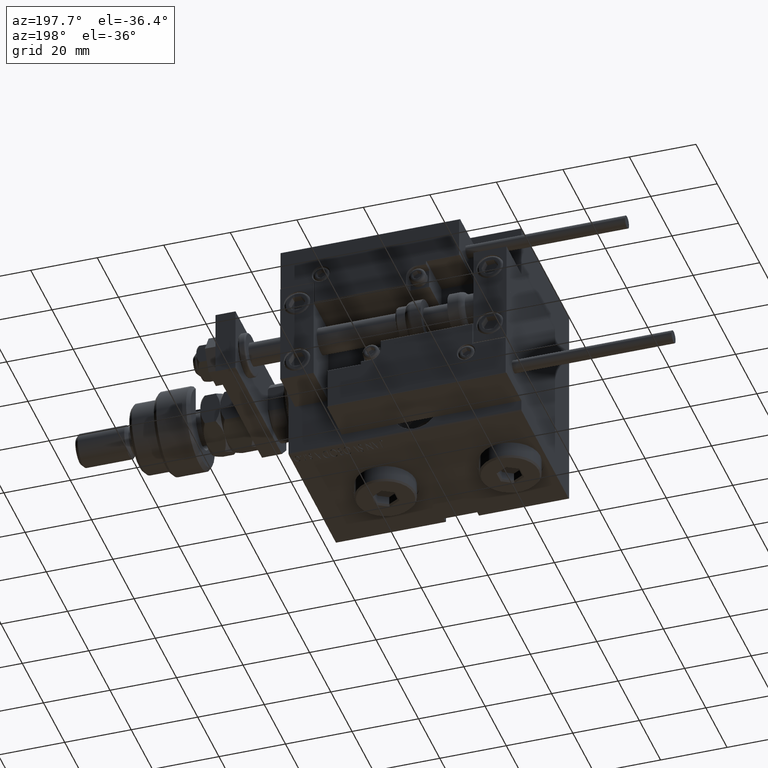
[diagram: clean part render]
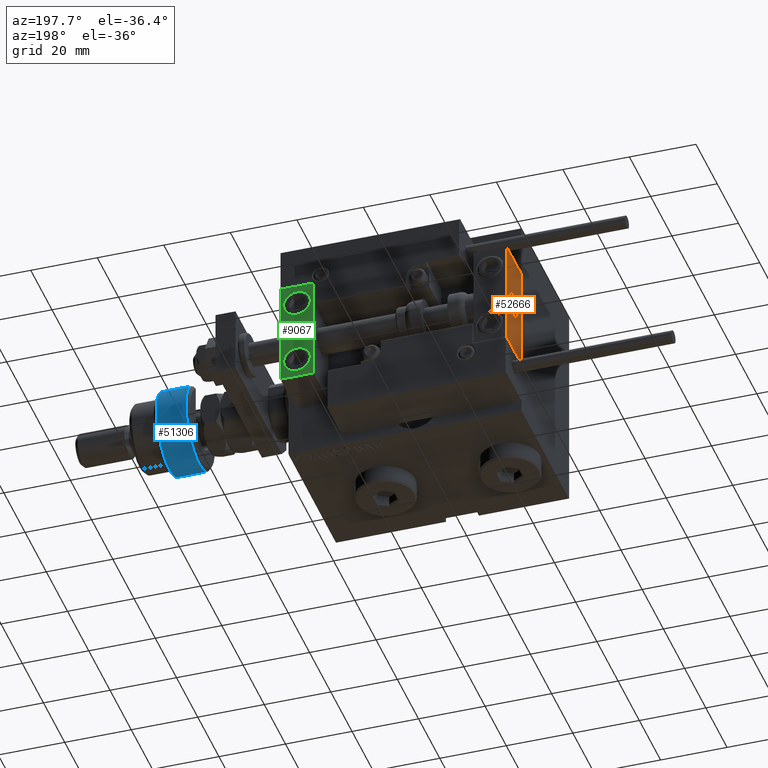
[diagram: same view with three faces highlighted in distinct colors, each labeled with its STEP entity id]
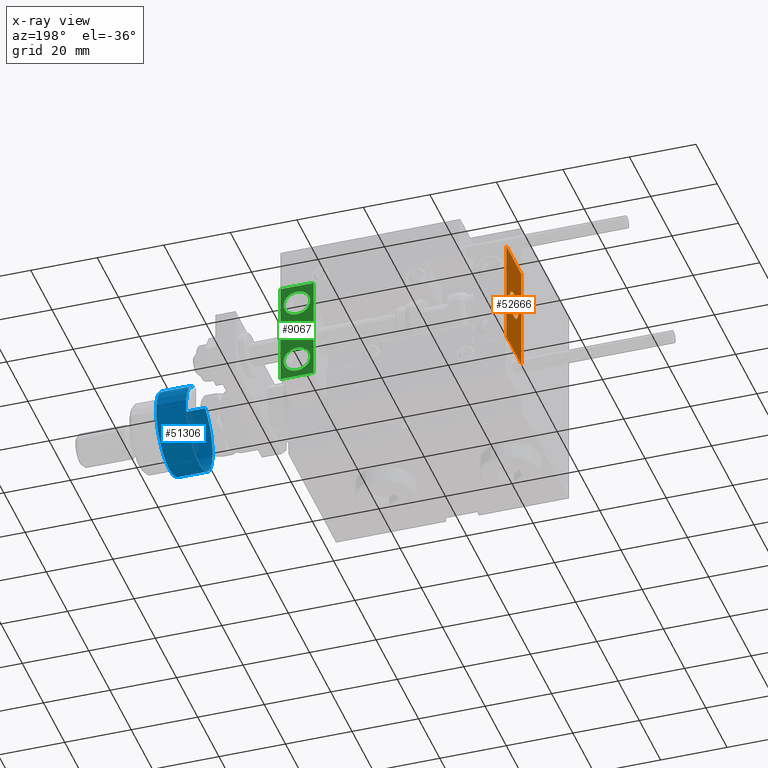
[diagram: x-ray of the same camera — body ghosted, the three highlighted faces saturated]
A machine part, auxiliary view with three faces highlighted in distinct colors.
The next image is the same camera in x-ray (body ghosted, the three faces saturated) — at least one of them is partly hidden behind the body in this view.
Their STEP definitions:

[orange] entity #52666 — the highlighted planar face has unit normal (1, 0, -0).
#428 = CARTESIAN_POINT ( 'NONE',  ( 10.00000000000000000, -7.000000000000000000, -16.00000000000000711 ) ) ;
#3017 = ORIENTED_EDGE ( 'NONE', *, *, #15675, .T. ) ;
#3043 = DIRECTION ( 'NONE',  ( 0.000000000000000000, -1.000000000000000000, 0.000000000000000000 ) ) ;
#3625 = EDGE_LOOP ( 'NONE', ( #53535, #32004 ) ) ;
#5743 = CARTESIAN_POINT ( 'NONE',  ( 10.00000000000000000, 4.898587196589412829E-16, -4.000000000000000000 ) ) ;
#6129 = AXIS2_PLACEMENT_3D ( 'NONE', #38323, #33957, #16782 ) ;
#6424 = AXIS2_PLACEMENT_3D ( 'NONE', #9225, #29414, #16880 ) ;
#6944 = VECTOR ( 'NONE', #47140, 1000.000000000000000 ) ;
#7718 = ORIENTED_EDGE ( 'NONE', *, *, #34459, .F. ) ;
#8499 = EDGE_CURVE ( 'NONE', #32985, #24153, #39260, .T. ) ;
#8754 = VECTOR ( 'NONE', #19813, 1000.000000000000000 ) ;
#9225 = CARTESIAN_POINT ( 'NONE',  ( 10.00000000000000000, 0.000000000000000000, 0.000000000000000000 ) ) ;
#10223 = VECTOR ( 'NONE', #3043, 1000.000000000000000 ) ;
#10747 = CIRCLE ( 'NONE', #6424, 4.000000000000000000 ) ;
#11434 = CARTESIAN_POINT ( 'NONE',  ( 10.00000000000000000, 0.000000000000000000, 0.000000000000000000 ) ) ;
#14301 = AXIS2_PLACEMENT_3D ( 'NONE', #11434, #47990, #44435 ) ;
#14777 = LINE ( 'NONE', #18873, #10223 ) ;
#15675 = EDGE_CURVE ( 'NONE', #49169, #16735, #44359, .T. ) ;
#16735 = VERTEX_POINT ( 'NONE', #428 ) ;
#16782 = DIRECTION ( 'NONE',  ( 0.000000000000000000, 0.000000000000000000, 1.000000000000000000 ) ) ;
#16880 = DIRECTION ( 'NONE',  ( 0.000000000000000000, 0.000000000000000000, 1.000000000000000000 ) ) ;
#18873 = CARTESIAN_POINT ( 'NONE',  ( 10.00000000000000000, 7.000000000000000000, -16.00000000000000711 ) ) ;
#19617 = PLANE ( 'NONE',  #14301 ) ;
#19813 = DIRECTION ( 'NONE',  ( 0.000000000000000000, 0.000000000000000000, -1.000000000000000000 ) ) ;
#21337 = CARTESIAN_POINT ( 'NONE',  ( 10.00000000000000000, -7.000000000000000000, 15.99999999999999289 ) ) ;
#22045 = CARTESIAN_POINT ( 'NONE',  ( 10.00000000000000000, 7.000000000000000000, 15.99999999999999289 ) ) ;
#23450 = ORIENTED_EDGE ( 'NONE', *, *, #8499, .F. ) ;
#24153 = VERTEX_POINT ( 'NONE', #34059 ) ;
#24903 = EDGE_CURVE ( 'NONE', #39153, #30268, #10747, .T. ) ;
#26169 = CARTESIAN_POINT ( 'NONE',  ( 10.00000000000000000, 7.000000000000000000, 15.99999999999999289 ) ) ;
#27247 = CARTESIAN_POINT ( 'NONE',  ( 10.00000000000000000, 7.000000000000000000, 15.99999999999999289 ) ) ;
#27522 = FACE_BOUND ( 'NONE', #3625, .T. ) ;
#28693 = EDGE_LOOP ( 'NONE', ( #3017, #7718, #23450, #41413 ) ) ;
#29414 = DIRECTION ( 'NONE',  ( -1.000000000000000000, 0.000000000000000000, 0.000000000000000000 ) ) ;
#30268 = VERTEX_POINT ( 'NONE', #42832 ) ;
#32004 = ORIENTED_EDGE ( 'NONE', *, *, #24903, .T. ) ;
#32985 = VERTEX_POINT ( 'NONE', #26169 ) ;
#33957 = DIRECTION ( 'NONE',  ( -1.000000000000000000, 0.000000000000000000, 0.000000000000000000 ) ) ;
#34059 = CARTESIAN_POINT ( 'NONE',  ( 10.00000000000000000, 7.000000000000000000, -16.00000000000000711 ) ) ;
#34459 = EDGE_CURVE ( 'NONE', #24153, #16735, #14777, .T. ) ;
#37618 = LINE ( 'NONE', #22045, #6944 ) ;
#38323 = CARTESIAN_POINT ( 'NONE',  ( 10.00000000000000000, 0.000000000000000000, 0.000000000000000000 ) ) ;
#39153 = VERTEX_POINT ( 'NONE', #5743 ) ;
#39260 = LINE ( 'NONE', #27247, #43275 ) ;
#39508 = EDGE_CURVE ( 'NONE', #32985, #49169, #37618, .T. ) ;
#39737 = CARTESIAN_POINT ( 'NONE',  ( 10.00000000000000000, -7.000000000000000000, 15.99999999999999289 ) ) ;
#41413 = ORIENTED_EDGE ( 'NONE', *, *, #39508, .T. ) ;
#42832 = CARTESIAN_POINT ( 'NONE',  ( 10.00000000000000000, 0.000000000000000000, 4.000000000000000000 ) ) ;
#43275 = VECTOR ( 'NONE', #51801, 1000.000000000000000 ) ;
#43808 = EDGE_CURVE ( 'NONE', #30268, #39153, #47043, .T. ) ;
#44359 = LINE ( 'NONE', #39737, #8754 ) ;
#44435 = DIRECTION ( 'NONE',  ( -0.000000000000000000, 0.000000000000000000, 1.000000000000000000 ) ) ;
#47043 = CIRCLE ( 'NONE', #6129, 4.000000000000000000 ) ;
#47140 = DIRECTION ( 'NONE',  ( 0.000000000000000000, -1.000000000000000000, 0.000000000000000000 ) ) ;
#47990 = DIRECTION ( 'NONE',  ( -1.000000000000000000, 0.000000000000000000, -0.000000000000000000 ) ) ;
#49169 = VERTEX_POINT ( 'NONE', #21337 ) ;
#51801 = DIRECTION ( 'NONE',  ( 0.000000000000000000, 0.000000000000000000, -1.000000000000000000 ) ) ;
#52337 = FACE_OUTER_BOUND ( 'NONE', #28693, .T. ) ;
#52666 = ADVANCED_FACE ( 'NONE', ( #27522, #52337 ), #19617, .F. ) ;
#53535 = ORIENTED_EDGE ( 'NONE', *, *, #43808, .T. ) ;

[blue] entity #51306 — the highlighted cylindrical surface (partial cylindrical patch) has radius 12.5 mm, axis along (-1, -0, 0).
#1919 = CARTESIAN_POINT ( 'NONE',  ( 12.50000000000000000, 0.000000000000000000, 0.9999999999999956701 ) ) ;
#2293 = DIRECTION ( 'NONE',  ( 1.000000000000000000, 0.000000000000000000, 0.000000000000000000 ) ) ;
#2981 = CARTESIAN_POINT ( 'NONE',  ( -11.22497216032182443, 5.500000000000000000, 10.00000000000000000 ) ) ;
#3031 = CARTESIAN_POINT ( 'NONE',  ( -11.22497216032182443, 5.500000000000000000, 0.9999999999999956701 ) ) ;
#3901 = CARTESIAN_POINT ( 'NONE',  ( 0.000000000000000000, 0.000000000000000000, 11.00000000000000000 ) ) ;
#4152 = CYLINDRICAL_SURFACE ( 'NONE', #38602, 12.50000000000000000 ) ;
#4238 = CARTESIAN_POINT ( 'NONE',  ( -11.22497216032182088, -5.500000000000007105, 10.00000000000000000 ) ) ;
#4509 = VECTOR ( 'NONE', #48397, 1000.000000000000000 ) ;
#6105 = ORIENTED_EDGE ( 'NONE', *, *, #19497, .T. ) ;
#7395 = CIRCLE ( 'NONE', #40388, 12.50000000000000000 ) ;
#8330 = EDGE_LOOP ( 'NONE', ( #21658, #6105, #8448, #29622, #35338 ) ) ;
#8448 = ORIENTED_EDGE ( 'NONE', *, *, #21343, .T. ) ;
#9656 = CIRCLE ( 'NONE', #35796, 12.50000000000000000 ) ;
#11793 = EDGE_CURVE ( 'NONE', #17743, #52360, #50191, .T. ) ;
#12347 = DIRECTION ( 'NONE',  ( -1.000000000000000000, 0.000000000000000000, 0.000000000000000000 ) ) ;
#12614 = FACE_OUTER_BOUND ( 'NONE', #8330, .T. ) ;
#13101 = DIRECTION ( 'NONE',  ( -0.000000000000000000, -0.000000000000000000, -1.000000000000000000 ) ) ;
#13141 = DIRECTION ( 'NONE',  ( 0.000000000000000000, 0.000000000000000000, -1.000000000000000000 ) ) ;
#15112 = CARTESIAN_POINT ( 'NONE',  ( -11.22497216032182088, -5.500000000000007105, 12.50000000000000000 ) ) ;
#16976 = DIRECTION ( 'NONE',  ( -0.000000000000000000, -0.000000000000000000, -1.000000000000000000 ) ) ;
#17743 = VERTEX_POINT ( 'NONE', #2981 ) ;
#18162 = CIRCLE ( 'NONE', #31203, 12.50000000000000000 ) ;
#19497 = EDGE_CURVE ( 'NONE', #17743, #53383, #9656, .T. ) ;
#21343 = EDGE_CURVE ( 'NONE', #53383, #35880, #52468, .T. ) ;
#21587 = CARTESIAN_POINT ( 'NONE',  ( 0.000000000000000000, 0.000000000000000000, 10.00000000000000000 ) ) ;
#21658 = ORIENTED_EDGE ( 'NONE', *, *, #11793, .F. ) ;
#23851 = CARTESIAN_POINT ( 'NONE',  ( 0.000000000000000000, 0.000000000000000000, 0.9999999999999956701 ) ) ;
#28605 = EDGE_CURVE ( 'NONE', #39207, #52360, #7395, .T. ) ;
#29622 = ORIENTED_EDGE ( 'NONE', *, *, #36678, .T. ) ;
#31203 = AXIS2_PLACEMENT_3D ( 'NONE', #23851, #44045, #2293 ) ;
#31719 = CARTESIAN_POINT ( 'NONE',  ( 0.000000000000000000, 0.000000000000000000, 0.9999999999999956701 ) ) ;
#31983 = DIRECTION ( 'NONE',  ( 1.000000000000000000, 0.000000000000000000, 0.000000000000000000 ) ) ;
#32994 = VECTOR ( 'NONE', #13101, 1000.000000000000000 ) ;
#35338 = ORIENTED_EDGE ( 'NONE', *, *, #28605, .T. ) ;
#35796 = AXIS2_PLACEMENT_3D ( 'NONE', #21587, #13141, #38507 ) ;
#35880 = VERTEX_POINT ( 'NONE', #42341 ) ;
#36678 = EDGE_CURVE ( 'NONE', #35880, #39207, #18162, .T. ) ;
#38507 = DIRECTION ( 'NONE',  ( 1.000000000000000000, 0.000000000000000000, 0.000000000000000000 ) ) ;
#38602 = AXIS2_PLACEMENT_3D ( 'NONE', #3901, #16976, #12347 ) ;
#39207 = VERTEX_POINT ( 'NONE', #1919 ) ;
#40388 = AXIS2_PLACEMENT_3D ( 'NONE', #31719, #48365, #31983 ) ;
#42341 = CARTESIAN_POINT ( 'NONE',  ( -11.22497216032182088, -5.500000000000007105, 0.9999999999999956701 ) ) ;
#44045 = DIRECTION ( 'NONE',  ( -0.000000000000000000, -0.000000000000000000, 1.000000000000000000 ) ) ;
#48365 = DIRECTION ( 'NONE',  ( -0.000000000000000000, -0.000000000000000000, 1.000000000000000000 ) ) ;
#48397 = DIRECTION ( 'NONE',  ( -0.000000000000000000, -0.000000000000000000, -1.000000000000000000 ) ) ;
#50191 = LINE ( 'NONE', #50458, #32994 ) ;
#50458 = CARTESIAN_POINT ( 'NONE',  ( -11.22497216032182443, 5.500000000000000000, 12.50000000000000000 ) ) ;
#51306 = ADVANCED_FACE ( 'NONE', ( #12614 ), #4152, .T. ) ;
#52360 = VERTEX_POINT ( 'NONE', #3031 ) ;
#52468 = LINE ( 'NONE', #15112, #4509 ) ;
#53383 = VERTEX_POINT ( 'NONE', #4238 ) ;

[green] entity #9067 — the highlighted planar face has unit normal (0, 1, 0).
#548 = VECTOR ( 'NONE', #51575, 1000.000000000000000 ) ;
#904 = ORIENTED_EDGE ( 'NONE', *, *, #26802, .F. ) ;
#1834 = DIRECTION ( 'NONE',  ( 1.848892746611746419E-32, -1.000000000000000000, 6.616381192988677562E-17 ) ) ;
#2459 = EDGE_CURVE ( 'NONE', #24153, #6732, #24321, .T. ) ;
#3024 = CIRCLE ( 'NONE', #28309, 4.000000000000000888 ) ;
#3109 = DIRECTION ( 'NONE',  ( 0.000000000000000000, 0.000000000000000000, 1.000000000000000000 ) ) ;
#4085 = DIRECTION ( 'NONE',  ( 0.000000000000000000, 0.000000000000000000, 1.000000000000000000 ) ) ;
#4738 = AXIS2_PLACEMENT_3D ( 'NONE', #46075, #29177, #4085 ) ;
#5950 = DIRECTION ( 'NONE',  ( -1.000000000000000000, -0.000000000000000000, -0.000000000000000000 ) ) ;
#6003 = CIRCLE ( 'NONE', #10326, 4.000000000000000000 ) ;
#6732 = VERTEX_POINT ( 'NONE', #30232 ) ;
#8499 = EDGE_CURVE ( 'NONE', #32985, #24153, #39260, .T. ) ;
#9067 = ADVANCED_FACE ( 'NONE', ( #9551, #51022, #26205 ), #10107, .T. ) ;
#9071 = CARTESIAN_POINT ( 'NONE',  ( 0.000000000000000000, 7.000000000000000000, 15.99999999999999289 ) ) ;
#9551 = FACE_OUTER_BOUND ( 'NONE', #38097, .T. ) ;
#10107 = PLANE ( 'NONE',  #49430 ) ;
#10196 = ORIENTED_EDGE ( 'NONE', *, *, #46682, .F. ) ;
#10326 = AXIS2_PLACEMENT_3D ( 'NONE', #13837, #1834, #18478 ) ;
#11323 = VERTEX_POINT ( 'NONE', #45801 ) ;
#12248 = EDGE_CURVE ( 'NONE', #36637, #11323, #6003, .T. ) ;
#13837 = CARTESIAN_POINT ( 'NONE',  ( 5.000000000000000888, 7.000000000000000888, 10.00000000000000178 ) ) ;
#14072 = CARTESIAN_POINT ( 'NONE',  ( 5.000000000000000888, 6.999999999999999112, -6.000000000000000888 ) ) ;
#14666 = CARTESIAN_POINT ( 'NONE',  ( 5.000000000000001776, 6.999999999999999112, -14.00000000000000178 ) ) ;
#15480 = CARTESIAN_POINT ( 'NONE',  ( 0.000000000000000000, 7.000000000000000000, 15.99999999999999289 ) ) ;
#16549 = ORIENTED_EDGE ( 'NONE', *, *, #32721, .F. ) ;
#16717 = EDGE_LOOP ( 'NONE', ( #28453, #904 ) ) ;
#16734 = DIRECTION ( 'NONE',  ( 0.000000000000000000, -0.000000000000000000, 1.000000000000000000 ) ) ;
#17414 = DIRECTION ( 'NONE',  ( 0.000000000000000000, 0.000000000000000000, 1.000000000000000000 ) ) ;
#18478 = DIRECTION ( 'NONE',  ( 0.000000000000000000, 0.000000000000000000, 1.000000000000000000 ) ) ;
#19278 = VECTOR ( 'NONE', #5950, 1000.000000000000000 ) ;
#20621 = ORIENTED_EDGE ( 'NONE', *, *, #8499, .T. ) ;
#22950 = VECTOR ( 'NONE', #42547, 1000.000000000000000 ) ;
#23062 = AXIS2_PLACEMENT_3D ( 'NONE', #40223, #31218, #3109 ) ;
#24153 = VERTEX_POINT ( 'NONE', #34059 ) ;
#24321 = LINE ( 'NONE', #43365, #22950 ) ;
#26169 = CARTESIAN_POINT ( 'NONE',  ( 10.00000000000000000, 7.000000000000000000, 15.99999999999999289 ) ) ;
#26205 = FACE_BOUND ( 'NONE', #50843, .T. ) ;
#26682 = LINE ( 'NONE', #43326, #19278 ) ;
#26802 = EDGE_CURVE ( 'NONE', #28071, #32005, #53548, .T. ) ;
#27247 = CARTESIAN_POINT ( 'NONE',  ( 10.00000000000000000, 7.000000000000000000, 15.99999999999999289 ) ) ;
#28071 = VERTEX_POINT ( 'NONE', #14666 ) ;
#28283 = CIRCLE ( 'NONE', #23062, 4.000000000000000000 ) ;
#28309 = AXIS2_PLACEMENT_3D ( 'NONE', #42777, #38691, #17414 ) ;
#28453 = ORIENTED_EDGE ( 'NONE', *, *, #31551, .F. ) ;
#29177 = DIRECTION ( 'NONE',  ( 0.000000000000000000, 1.000000000000000000, -6.065466699219605527E-17 ) ) ;
#30232 = CARTESIAN_POINT ( 'NONE',  ( 0.000000000000000000, 7.000000000000000000, -16.00000000000000711 ) ) ;
#31218 = DIRECTION ( 'NONE',  ( 1.848892746611746419E-32, -1.000000000000000000, 6.616381192988677562E-17 ) ) ;
#31551 = EDGE_CURVE ( 'NONE', #32005, #28071, #3024, .T. ) ;
#32005 = VERTEX_POINT ( 'NONE', #14072 ) ;
#32573 = CARTESIAN_POINT ( 'NONE',  ( 5.000000000000001776, 7.000000000000000888, 6.000000000000000888 ) ) ;
#32721 = EDGE_CURVE ( 'NONE', #53208, #6732, #52574, .T. ) ;
#32985 = VERTEX_POINT ( 'NONE', #26169 ) ;
#33359 = ORIENTED_EDGE ( 'NONE', *, *, #12248, .T. ) ;
#34059 = CARTESIAN_POINT ( 'NONE',  ( 10.00000000000000000, 7.000000000000000000, -16.00000000000000711 ) ) ;
#36637 = VERTEX_POINT ( 'NONE', #32573 ) ;
#37476 = CARTESIAN_POINT ( 'NONE',  ( 10.00000000000000000, 7.000000000000000000, 15.99999999999999289 ) ) ;
#38097 = EDGE_LOOP ( 'NONE', ( #16549, #10196, #20621, #52435 ) ) ;
#38691 = DIRECTION ( 'NONE',  ( 0.000000000000000000, 1.000000000000000000, -6.065466699219605527E-17 ) ) ;
#39024 = DIRECTION ( 'NONE',  ( -0.000000000000000000, 1.000000000000000000, 0.000000000000000000 ) ) ;
#39260 = LINE ( 'NONE', #27247, #43275 ) ;
#40223 = CARTESIAN_POINT ( 'NONE',  ( 5.000000000000000888, 7.000000000000000888, 10.00000000000000178 ) ) ;
#42547 = DIRECTION ( 'NONE',  ( -1.000000000000000000, -0.000000000000000000, -0.000000000000000000 ) ) ;
#42777 = CARTESIAN_POINT ( 'NONE',  ( 5.000000000000000888, 6.999999999999999112, -10.00000000000000178 ) ) ;
#43275 = VECTOR ( 'NONE', #51801, 1000.000000000000000 ) ;
#43326 = CARTESIAN_POINT ( 'NONE',  ( 10.00000000000000000, 7.000000000000000000, 15.99999999999999289 ) ) ;
#43365 = CARTESIAN_POINT ( 'NONE',  ( 10.00000000000000000, 7.000000000000000000, -16.00000000000000711 ) ) ;
#45801 = CARTESIAN_POINT ( 'NONE',  ( 5.000000000000000888, 7.000000000000000888, 14.00000000000000178 ) ) ;
#46075 = CARTESIAN_POINT ( 'NONE',  ( 5.000000000000000888, 6.999999999999999112, -10.00000000000000178 ) ) ;
#46682 = EDGE_CURVE ( 'NONE', #32985, #53208, #26682, .T. ) ;
#49430 = AXIS2_PLACEMENT_3D ( 'NONE', #37476, #39024, #16734 ) ;
#50843 = EDGE_LOOP ( 'NONE', ( #52967, #33359 ) ) ;
#51022 = FACE_BOUND ( 'NONE', #16717, .T. ) ;
#51575 = DIRECTION ( 'NONE',  ( 0.000000000000000000, 0.000000000000000000, -1.000000000000000000 ) ) ;
#51801 = DIRECTION ( 'NONE',  ( 0.000000000000000000, 0.000000000000000000, -1.000000000000000000 ) ) ;
#52435 = ORIENTED_EDGE ( 'NONE', *, *, #2459, .T. ) ;
#52574 = LINE ( 'NONE', #15480, #548 ) ;
#52967 = ORIENTED_EDGE ( 'NONE', *, *, #53553, .T. ) ;
#53208 = VERTEX_POINT ( 'NONE', #9071 ) ;
#53548 = CIRCLE ( 'NONE', #4738, 4.000000000000000888 ) ;
#53553 = EDGE_CURVE ( 'NONE', #11323, #36637, #28283, .T. ) ;